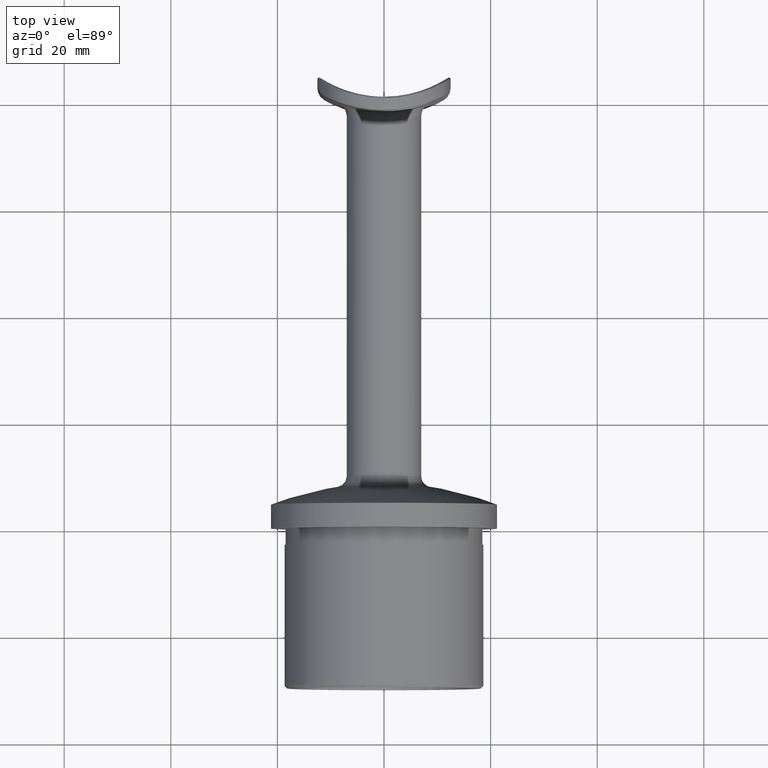
[diagram: clean part render]
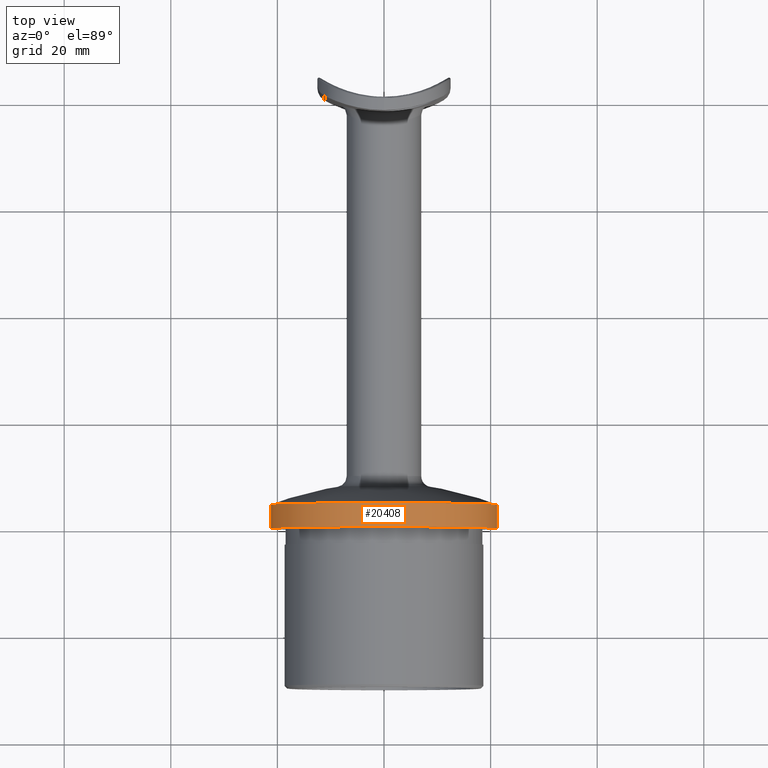
[diagram: same view with one face highlighted and labeled with its STEP entity id]
A machine part, top view. The second image highlights one B-rep face of the part: STEP entity #20408.
In plain terms, the highlighted cylindrical surface (bore or boss wall) has radius 21.2 mm, axis along (0, -1, -0).
Its self-contained STEP definition (entity closure, byte-faithful):
#739 = CARTESIAN_POINT ( 'NONE',  ( 21.19999999999999929, 4.500000000000000888, 0.000000000000000000 ) ) ;
#1011 = CARTESIAN_POINT ( 'NONE',  ( 21.19999999999999929, 9.946330764574522650E-16, 0.000000000000000000 ) ) ;
#2159 = EDGE_LOOP ( 'NONE', ( #11613 ) ) ;
#3407 = CARTESIAN_POINT ( 'NONE',  ( 7.070310498249596747E-15, -8.673617379884035472E-16, 0.000000000000000000 ) ) ;
#3682 = AXIS2_PLACEMENT_3D ( 'NONE', #8634, #6434, #10488 ) ;
#3931 = DIRECTION ( 'NONE',  ( 1.000000000000000000, 8.182657905550979512E-17, 0.000000000000000000 ) ) ;
#5368 = VERTEX_POINT ( 'NONE', #1011 ) ;
#5383 = FACE_OUTER_BOUND ( 'NONE', #2159, .T. ) ;
#5434 = DIRECTION ( 'NONE',  ( 1.000000000000000000, 8.782994407763472743E-17, 0.000000000000000000 ) ) ;
#6254 = CIRCLE ( 'NONE', #3682, 21.19999999999999218 ) ;
#6434 = DIRECTION ( 'NONE',  ( 8.782994407763473975E-17, -1.000000000000000000, -0.000000000000000000 ) ) ;
#7611 = FACE_OUTER_BOUND ( 'NONE', #10013, .T. ) ;
#8634 = CARTESIAN_POINT ( 'NONE',  ( 6.675075749900240221E-15, 4.499999999999999112, 0.000000000000000000 ) ) ;
#9453 = VERTEX_POINT ( 'NONE', #739 ) ;
#10013 = EDGE_LOOP ( 'NONE', ( #16488 ) ) ;
#10488 = DIRECTION ( 'NONE',  ( 1.000000000000000000, 8.182657905550979512E-17, 0.000000000000000000 ) ) ;
#10823 = AXIS2_PLACEMENT_3D ( 'NONE', #3407, #17479, #5434 ) ;
#11613 = ORIENTED_EDGE ( 'NONE', *, *, #20227, .F. ) ;
#12748 = EDGE_CURVE ( 'NONE', #9453, #9453, #6254, .T. ) ;
#16003 = CARTESIAN_POINT ( 'NONE',  ( 6.675075749900240221E-15, 4.500000000000003553, 0.000000000000000000 ) ) ;
#16488 = ORIENTED_EDGE ( 'NONE', *, *, #12748, .T. ) ;
#17054 = CIRCLE ( 'NONE', #10823, 21.19999999999999218 ) ;
#17479 = DIRECTION ( 'NONE',  ( 8.782994407763473975E-17, -1.000000000000000000, -0.000000000000000000 ) ) ;
#19718 = DIRECTION ( 'NONE',  ( 8.782994407763473975E-17, -1.000000000000000000, -0.000000000000000000 ) ) ;
#20227 = EDGE_CURVE ( 'NONE', #5368, #5368, #17054, .T. ) ;
#20408 = ADVANCED_FACE ( 'NONE', ( #7611, #5383 ), #22652, .T. ) ;
#22652 = CYLINDRICAL_SURFACE ( 'NONE', #24602, 21.19999999999999218 ) ;
#24602 = AXIS2_PLACEMENT_3D ( 'NONE', #16003, #19718, #3931 ) ;